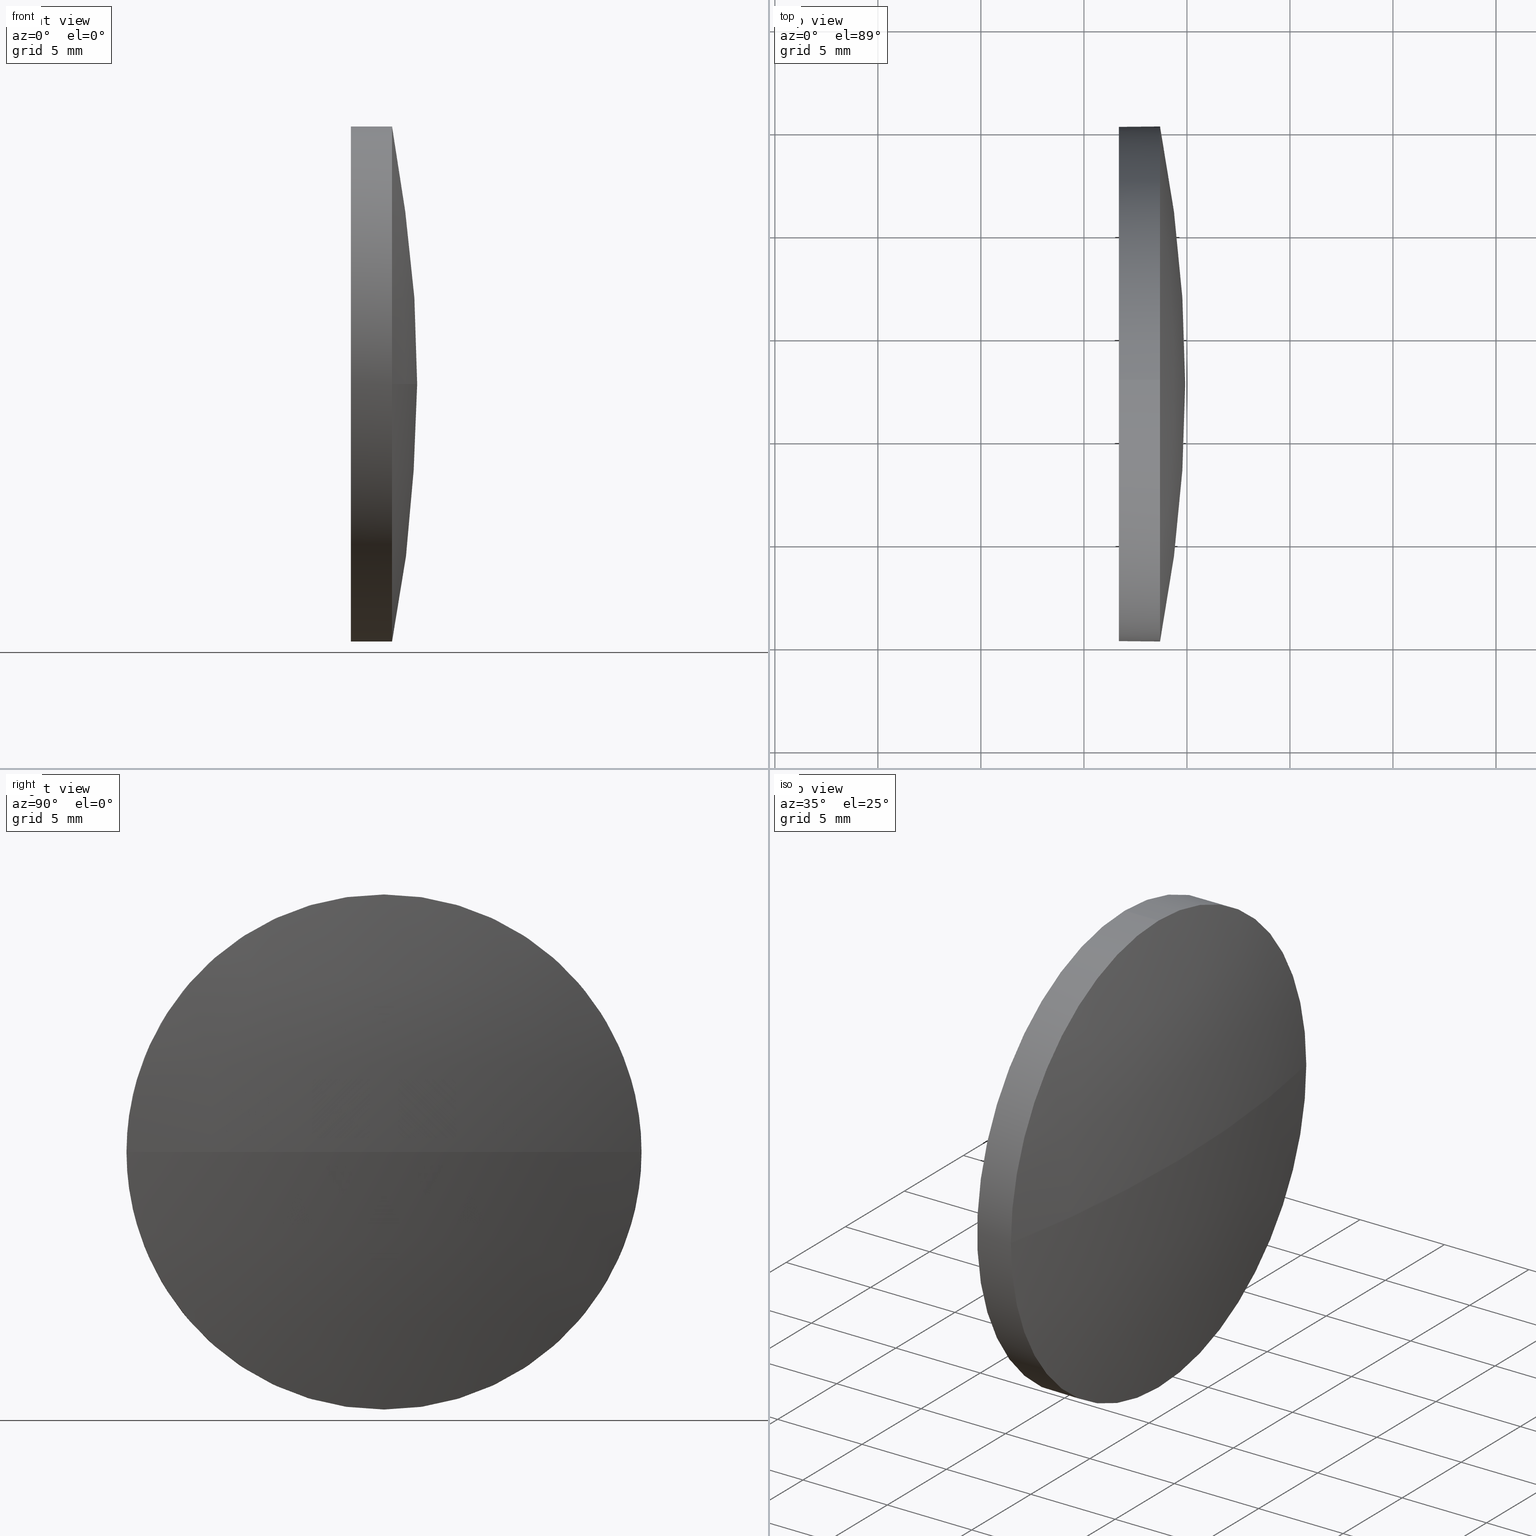
[diagram: canonical four-view strip — front | top / right | iso, engineering-drawing reading convention]
A machine part, canonical four-view strip (front | top / right | iso — engineering-drawing reading convention). The complete STEP part file that produces these views, byte-faithful:
ISO-10303-21;
HEADER;
FILE_DESCRIPTION (( 'STEP AP214' ),
    '1' );
FILE_NAME ('100131.STEP',
    '2019-05-15T01:28:14',
    ( '' ),
    ( '' ),
    'SwSTEP 2.0',
    'SolidWorks 2016',
    '' );
FILE_SCHEMA (( 'AUTOMOTIVE_DESIGN' ));
ENDSEC;

DATA;
#1 = EDGE_CURVE ( 'NONE', #79, #54, #132, .T. ) ;
#2 =( GEOMETRIC_REPRESENTATION_CONTEXT ( 3 ) GLOBAL_UNCERTAINTY_ASSIGNED_CONTEXT ( ( #115 ) ) GLOBAL_UNIT_ASSIGNED_CONTEXT ( ( #130, #71, #101 ) ) REPRESENTATION_CONTEXT ( 'NONE', 'WORKASPACE' ) );
#3 = ORIENTED_EDGE ( 'NONE', *, *, #67, .F. ) ;
#4 = COLOUR_RGB ( '',1.000000000000000000, 1.000000000000000000, 1.000000000000000000 ) ;
#5 = ADVANCED_FACE ( 'NONE', ( #157 ), #36, .T. ) ;
#6 = MANIFOLD_SOLID_BREP ( '��ת2', #49 ) ;
#7 = PRODUCT_DEFINITION_FORMATION_WITH_SPECIFIED_SOURCE ( '�κ�', '', #146, .NOT_KNOWN. ) ;
#8 = ORIENTED_EDGE ( 'NONE', *, *, #1, .F. ) ;
#9 = ORIENTED_EDGE ( 'NONE', *, *, #30, .T. ) ;
#10 = ORIENTED_EDGE ( 'NONE', *, *, #63, .F. ) ;
#11 = ADVANCED_FACE ( 'NONE', ( #145 ), #113, .T. ) ;
#12 = DIRECTION ( 'NONE',  ( 0.0000000000000000000, 0.0000000000000000000, -1.000000000000000000 ) ) ;
#13 = ORIENTED_EDGE ( 'NONE', *, *, #111, .F. ) ;
#14 = FILL_AREA_STYLE_COLOUR ( '', #176 ) ;
#15 = ORIENTED_EDGE ( 'NONE', *, *, #177, .F. ) ;
#16 = CARTESIAN_POINT ( 'NONE',  ( 663.6944572841594000, 125.1777850517631400, 0.0000000000000000000 ) ) ;
#17 = DIRECTION ( 'NONE',  ( -1.000000000000000000, -0.0000000000000000000, -0.0000000000000000000 ) ) ;
#18 = ORIENTED_EDGE ( 'NONE', *, *, #1, .T. ) ;
#19 = APPLICATION_CONTEXT ( 'automotive_design' ) ;
#20 = EDGE_LOOP ( 'NONE', ( #8, #9, #152, #94 ) ) ;
#21 = EDGE_CURVE ( 'NONE', #121, #83, #29, .T. ) ;
#22 = ADVANCED_FACE ( 'NONE', ( #66 ), #142, .T. ) ;
#23 = AXIS2_PLACEMENT_3D ( 'NONE', #43, #120, #156 ) ;
#24 = LINE ( 'NONE', #129, #73 ) ;
#25 = UNCERTAINTY_MEASURE_WITH_UNIT (LENGTH_MEASURE( 1.000000000000000100E-005 ), #86, 'distance_accuracy_value', 'NONE');
#26 = DIRECTION ( 'NONE',  ( -1.000000000000000000, -0.0000000000000000000, -0.0000000000000000000 ) ) ;
#27 = DIRECTION ( 'NONE',  ( -1.000000000000000000, -0.0000000000000000000, -0.0000000000000000000 ) ) ;
#28 = DIRECTION ( 'NONE',  ( 0.0000000000000000000, 0.0000000000000000000, 1.000000000000000000 ) ) ;
#29 = LINE ( 'NONE', #182, #147 ) ;
#30 = EDGE_CURVE ( 'NONE', #79, #40, #109, .T. ) ;
#31 = CARTESIAN_POINT ( 'NONE',  ( 661.6944572841594000, 112.6777850517631800, 12.50000000000001100 ) ) ;
#32 =( NAMED_UNIT ( * ) PLANE_ANGLE_UNIT ( ) SI_UNIT ( $, .RADIAN. ) );
#33 = PRODUCT_RELATED_PRODUCT_CATEGORY ( 'part', '', ( #146 ) ) ;
#34 = STYLED_ITEM ( 'NONE', ( #39 ), #175 ) ;
#35 = APPLICATION_PROTOCOL_DEFINITION ( 'draft international standard', 'automotive_design', 1998, #19 ) ;
#36 = CYLINDRICAL_SURFACE ( 'NONE', #77, 12.50000000000001100 ) ;
#37 = CIRCLE ( 'NONE', #160, 12.50000000000001100 ) ;
#38 = PRESENTATION_LAYER_ASSIGNMENT (  '', '', ( #82 ) ) ;
#39 = PRESENTATION_STYLE_ASSIGNMENT (( #57 ) ) ;
#40 = VERTEX_POINT ( 'NONE', #16 ) ;
#41 =( LENGTH_UNIT ( ) NAMED_UNIT ( * ) SI_UNIT ( .MILLI., .METRE. ) );
#42 = ADVANCED_FACE ( 'NONE', ( #174 ), #76, .F. ) ;
#43 = CARTESIAN_POINT ( 'NONE',  ( 0.0000000000000000000, 0.0000000000000000000, 0.0000000000000000000 ) ) ;
#44 = DIRECTION ( 'NONE',  ( -0.0000000000000000000, 0.0000000000000000000, -1.000000000000000000 ) ) ;
#45 = ORIENTED_EDGE ( 'NONE', *, *, #177, .T. ) ;
#46 = DIRECTION ( 'NONE',  ( 0.0000000000000000000, 0.0000000000000000000, 1.000000000000000000 ) ) ;
#47 = AXIS2_PLACEMENT_3D ( 'NONE', #155, #172, #168 ) ;
#48 = PRODUCT_DEFINITION ( 'δ֪', '', #7, #154 ) ;
#49 = CLOSED_SHELL ( 'NONE', ( #5, #22, #11, #78, #42 ) ) ;
#50 = EDGE_LOOP ( 'NONE', ( #53, #18, #10, #15 ) ) ;
#51 = ORIENTED_EDGE ( 'NONE', *, *, #63, .T. ) ;
#52 =( GEOMETRIC_REPRESENTATION_CONTEXT ( 3 ) GLOBAL_UNCERTAINTY_ASSIGNED_CONTEXT ( ( #25 ) ) GLOBAL_UNIT_ASSIGNED_CONTEXT ( ( #86, #166, #180 ) ) REPRESENTATION_CONTEXT ( 'NONE', 'WORKASPACE' ) );
#53 = ORIENTED_EDGE ( 'NONE', *, *, #30, .F. ) ;
#54 = VERTEX_POINT ( 'NONE', #165 ) ;
#55 = CARTESIAN_POINT ( 'NONE',  ( 659.3288413813984300, 112.6777850517631800, 0.0000000000000000000 ) ) ;
#56 = ORIENTED_EDGE ( 'NONE', *, *, #110, .T. ) ;
#57 = SURFACE_STYLE_USAGE ( .BOTH. , #74 ) ;
#58 = FILL_AREA_STYLE ('',( #14 ) ) ;
#59 = DIRECTION ( 'NONE',  ( 1.000000000000000000, 0.0000000000000000000, 0.0000000000000000000 ) ) ;
#60 = DIRECTION ( 'NONE',  ( 0.0000000000000000000, 0.0000000000000000000, 1.000000000000000000 ) ) ;
#61 = EDGE_CURVE ( 'NONE', #83, #149, #135, .T. ) ;
#62 = MECHANICAL_DESIGN_GEOMETRIC_PRESENTATION_REPRESENTATION (  '', ( #34 ), #2 ) ;
#63 = EDGE_CURVE ( 'NONE', #123, #54, #37, .T. ) ;
#64 = CIRCLE ( 'NONE', #106, 12.50000000000001100 ) ;
#65 = AXIS2_PLACEMENT_3D ( 'NONE', #131, #44, #70 ) ;
#66 = FACE_OUTER_BOUND ( 'NONE', #50, .T. ) ;
#67 = EDGE_CURVE ( 'NONE', #149, #83, #103, .T. ) ;
#68 = DIRECTION ( 'NONE',  ( 0.0000000000000000000, 1.224646799147353200E-016, -1.000000000000000000 ) ) ;
#69 = DIRECTION ( 'NONE',  ( 0.0000000000000000000, 0.0000000000000000000, 1.000000000000000000 ) ) ;
#70 = DIRECTION ( 'NONE',  ( 0.0000000000000000000, 1.000000000000000000, 0.0000000000000000000 ) ) ;
#71 =( NAMED_UNIT ( * ) PLANE_ANGLE_UNIT ( ) SI_UNIT ( $, .RADIAN. ) );
#72 = DIRECTION ( 'NONE',  ( -1.000000000000000000, -0.0000000000000000000, -0.0000000000000000000 ) ) ;
#73 = VECTOR ( 'NONE', #181, 1000.000000000000000 ) ;
#74 = SURFACE_SIDE_STYLE ('',( #184 ) ) ;
#75 = CARTESIAN_POINT ( 'NONE',  ( 663.6944572841594000, 112.6777850517631800, 0.0000000000000000000 ) ) ;
#76 = PLANE ( 'NONE',  #96 ) ;
#77 = AXIS2_PLACEMENT_3D ( 'NONE', #55, #164, #81 ) ;
#78 = ADVANCED_FACE ( 'NONE', ( #136 ), #169, .T. ) ;
#79 = VERTEX_POINT ( 'NONE', #133 ) ;
#80 = AXIS2_PLACEMENT_3D ( 'NONE', #102, #137, #153 ) ;
#81 = DIRECTION ( 'NONE',  ( 0.0000000000000000000, 0.0000000000000000000, 1.000000000000000000 ) ) ;
#82 = STYLED_ITEM ( 'NONE', ( #107 ), #6 ) ;
#83 = VERTEX_POINT ( 'NONE', #31 ) ;
#84 = DIRECTION ( 'NONE',  ( 0.0000000000000000000, 0.0000000000000000000, 1.000000000000000000 ) ) ;
#85 = CARTESIAN_POINT ( 'NONE',  ( 663.6944572841594000, 112.6777850517631800, 12.50000000000001100 ) ) ;
#86 =( LENGTH_UNIT ( ) NAMED_UNIT ( * ) SI_UNIT ( .MILLI., .METRE. ) );
#87 = CARTESIAN_POINT ( 'NONE',  ( 663.6944572841594000, 112.6777850517631800, 0.0000000000000000000 ) ) ;
#88 = CARTESIAN_POINT ( 'NONE',  ( 661.6944572841594000, 112.6777850517631800, 0.0000000000000000000 ) ) ;
#89 = EDGE_LOOP ( 'NONE', ( #13, #51, #56, #161, #3 ) ) ;
#90 = APPLICATION_PROTOCOL_DEFINITION ( 'draft international standard', 'automotive_design', 1998, #139 ) ;
#91 = CARTESIAN_POINT ( 'NONE',  ( 659.3288413813984300, 112.6777850517631800, 0.0000000000000000000 ) ) ;
#92 = SHAPE_DEFINITION_REPRESENTATION ( #159, #175 ) ;
#93 = ORIENTED_EDGE ( 'NONE', *, *, #111, .T. ) ;
#94 = ORIENTED_EDGE ( 'NONE', *, *, #110, .F. ) ;
#95 = AXIS2_PLACEMENT_3D ( 'NONE', #140, #118, #28 ) ;
#96 = AXIS2_PLACEMENT_3D ( 'NONE', #88, #59, #12 ) ;
#97 = CIRCLE ( 'NONE', #171, 12.50000000000001100 ) ;
#98 =( NAMED_UNIT ( * ) SI_UNIT ( $, .STERADIAN. ) SOLID_ANGLE_UNIT ( ) );
#99 = CARTESIAN_POINT ( 'NONE',  ( 661.6944572841594000, 112.6777850517631800, 0.0000000000000000000 ) ) ;
#100 = SURFACE_STYLE_USAGE ( .BOTH. , #117 ) ;
#101 =( NAMED_UNIT ( * ) SI_UNIT ( $, .STERADIAN. ) SOLID_ANGLE_UNIT ( ) );
#102 = CARTESIAN_POINT ( 'NONE',  ( 600.2675720382576400, 112.6777850517629700, 0.0000000000000000000 ) ) ;
#103 = CIRCLE ( 'NONE', #112, 12.50000000000001100 ) ;
#104 = CARTESIAN_POINT ( 'NONE',  ( 663.6944572841594000, 112.6777850517631800, 0.0000000000000000000 ) ) ;
#105 = DIRECTION ( 'NONE',  ( -1.000000000000000000, -0.0000000000000000000, -0.0000000000000000000 ) ) ;
#106 = AXIS2_PLACEMENT_3D ( 'NONE', #75, #134, #183 ) ;
#107 = PRESENTATION_STYLE_ASSIGNMENT (( #100 ) ) ;
#108 = MECHANICAL_DESIGN_GEOMETRIC_PRESENTATION_REPRESENTATION (  '', ( #82 ), #52 ) ;
#109 = CIRCLE ( 'NONE', #47, 64.64688524590178500 ) ;
#110 = EDGE_CURVE ( 'NONE', #54, #121, #97, .T. ) ;
#111 = EDGE_CURVE ( 'NONE', #123, #149, #24, .T. ) ;
#112 = AXIS2_PLACEMENT_3D ( 'NONE', #99, #27, #60 ) ;
#113 = SPHERICAL_SURFACE ( 'NONE', #65, 64.64688524590181400 ) ;
#114 =( GEOMETRIC_REPRESENTATION_CONTEXT ( 3 ) GLOBAL_UNCERTAINTY_ASSIGNED_CONTEXT ( ( #127 ) ) GLOBAL_UNIT_ASSIGNED_CONTEXT ( ( #41, #32, #98 ) ) REPRESENTATION_CONTEXT ( 'NONE', 'WORKASPACE' ) );
#115 = UNCERTAINTY_MEASURE_WITH_UNIT (LENGTH_MEASURE( 1.000000000000000100E-005 ), #130, 'distance_accuracy_value', 'NONE');
#116 = DIRECTION ( 'NONE',  ( -1.000000000000000000, -0.0000000000000000000, -0.0000000000000000000 ) ) ;
#117 = SURFACE_SIDE_STYLE ('',( #138 ) ) ;
#118 = DIRECTION ( 'NONE',  ( -1.000000000000000000, -0.0000000000000000000, -0.0000000000000000000 ) ) ;
#119 = EDGE_CURVE ( 'NONE', #121, #40, #178, .T. ) ;
#120 = DIRECTION ( 'NONE',  ( 0.0000000000000000000, 0.0000000000000000000, 1.000000000000000000 ) ) ;
#121 = VERTEX_POINT ( 'NONE', #85 ) ;
#122 = ORIENTED_EDGE ( 'NONE', *, *, #61, .T. ) ;
#123 = VERTEX_POINT ( 'NONE', #150 ) ;
#124 = AXIS2_PLACEMENT_3D ( 'NONE', #170, #105, #167 ) ;
#125 = ORIENTED_EDGE ( 'NONE', *, *, #67, .T. ) ;
#126 = AXIS2_PLACEMENT_3D ( 'NONE', #91, #17, #69 ) ;
#127 = UNCERTAINTY_MEASURE_WITH_UNIT (LENGTH_MEASURE( 1.000000000000000100E-005 ), #41, 'distance_accuracy_value', 'NONE');
#128 = ORIENTED_EDGE ( 'NONE', *, *, #61, .F. ) ;
#129 = CARTESIAN_POINT ( 'NONE',  ( 659.3288413813984300, 112.6777850517631800, -12.50000000000001100 ) ) ;
#130 =( LENGTH_UNIT ( ) NAMED_UNIT ( * ) SI_UNIT ( .MILLI., .METRE. ) );
#131 = CARTESIAN_POINT ( 'NONE',  ( 600.2675720382576400, 112.6777850517629700, 0.0000000000000000000 ) ) ;
#132 = CIRCLE ( 'NONE', #144, 64.64688524590182800 ) ;
#133 = CARTESIAN_POINT ( 'NONE',  ( 664.9144572841594300, 112.6777850517629700, 0.0000000000000000000 ) ) ;
#134 = DIRECTION ( 'NONE',  ( -1.000000000000000000, -0.0000000000000000000, -0.0000000000000000000 ) ) ;
#135 = CIRCLE ( 'NONE', #124, 12.50000000000001100 ) ;
#136 = FACE_OUTER_BOUND ( 'NONE', #89, .T. ) ;
#137 = DIRECTION ( 'NONE',  ( -0.0000000000000000000, 0.0000000000000000000, -1.000000000000000000 ) ) ;
#138 = SURFACE_STYLE_FILL_AREA ( #58 ) ;
#139 = APPLICATION_CONTEXT ( 'automotive_design' ) ;
#140 = CARTESIAN_POINT ( 'NONE',  ( 663.6944572841594000, 112.6777850517631800, 0.0000000000000000000 ) ) ;
#141 = DIRECTION ( 'NONE',  ( 0.0000000000000000000, 1.000000000000000000, 1.224646799147353000E-016 ) ) ;
#142 = SPHERICAL_SURFACE ( 'NONE', #80, 64.64688524590181400 ) ;
#143 = FILL_AREA_STYLE_COLOUR ( '', #4 ) ;
#144 = AXIS2_PLACEMENT_3D ( 'NONE', #148, #68, #141 ) ;
#145 = FACE_OUTER_BOUND ( 'NONE', #20, .T. ) ;
#146 = PRODUCT ( '100131', '100131', '', ( #185 ) ) ;
#147 = VECTOR ( 'NONE', #72, 1000.000000000000000 ) ;
#148 = CARTESIAN_POINT ( 'NONE',  ( 600.2675720382576400, 112.6777850517629700, 0.0000000000000000000 ) ) ;
#149 = VERTEX_POINT ( 'NONE', #179 ) ;
#150 = CARTESIAN_POINT ( 'NONE',  ( 663.6944572841594000, 112.6777850517631800, -12.50000000000001100 ) ) ;
#151 = FILL_AREA_STYLE ('',( #143 ) ) ;
#152 = ORIENTED_EDGE ( 'NONE', *, *, #119, .F. ) ;
#153 = DIRECTION ( 'NONE',  ( 0.0000000000000000000, 1.000000000000000000, 0.0000000000000000000 ) ) ;
#154 = PRODUCT_DEFINITION_CONTEXT ( 'detailed design', #19, 'design' ) ;
#155 = CARTESIAN_POINT ( 'NONE',  ( 600.2675720382576400, 112.6777850517629700, 0.0000000000000000000 ) ) ;
#156 = DIRECTION ( 'NONE',  ( 1.000000000000000000, 0.0000000000000000000, 0.0000000000000000000 ) ) ;
#157 = FACE_OUTER_BOUND ( 'NONE', #158, .T. ) ;
#158 = EDGE_LOOP ( 'NONE', ( #45, #93, #128, #163, #186 ) ) ;
#159 = PRODUCT_DEFINITION_SHAPE ( 'NONE', 'NONE',  #48 ) ;
#160 = AXIS2_PLACEMENT_3D ( 'NONE', #104, #26, #46 ) ;
#161 = ORIENTED_EDGE ( 'NONE', *, *, #21, .T. ) ;
#162 = EDGE_LOOP ( 'NONE', ( #122, #125 ) ) ;
#163 = ORIENTED_EDGE ( 'NONE', *, *, #21, .F. ) ;
#164 = DIRECTION ( 'NONE',  ( -1.000000000000000000, -0.0000000000000000000, -0.0000000000000000000 ) ) ;
#165 = CARTESIAN_POINT ( 'NONE',  ( 663.6944572841594000, 100.1777850517630000, -1.530808498934188200E-015 ) ) ;
#166 =( NAMED_UNIT ( * ) PLANE_ANGLE_UNIT ( ) SI_UNIT ( $, .RADIAN. ) );
#167 = DIRECTION ( 'NONE',  ( 0.0000000000000000000, 0.0000000000000000000, 1.000000000000000000 ) ) ;
#168 = DIRECTION ( 'NONE',  ( 1.000000000000000000, 0.0000000000000000000, 0.0000000000000000000 ) ) ;
#169 = CYLINDRICAL_SURFACE ( 'NONE', #126, 12.50000000000001100 ) ;
#170 = CARTESIAN_POINT ( 'NONE',  ( 661.6944572841594000, 112.6777850517631800, 0.0000000000000000000 ) ) ;
#171 = AXIS2_PLACEMENT_3D ( 'NONE', #87, #116, #84 ) ;
#172 = DIRECTION ( 'NONE',  ( -0.0000000000000000000, 0.0000000000000000000, 1.000000000000000000 ) ) ;
#173 = PRESENTATION_LAYER_ASSIGNMENT (  '', '', ( #34 ) ) ;
#174 = FACE_OUTER_BOUND ( 'NONE', #162, .T. ) ;
#175 = ADVANCED_BREP_SHAPE_REPRESENTATION ( '100131', ( #6, #23 ), #114 ) ;
#176 = COLOUR_RGB ( '',1.000000000000000000, 1.000000000000000000, 1.000000000000000000 ) ;
#177 = EDGE_CURVE ( 'NONE', #40, #123, #64, .T. ) ;
#178 = CIRCLE ( 'NONE', #95, 12.50000000000001100 ) ;
#179 = CARTESIAN_POINT ( 'NONE',  ( 661.6944572841594000, 112.6777850517631800, -12.50000000000001100 ) ) ;
#180 =( NAMED_UNIT ( * ) SI_UNIT ( $, .STERADIAN. ) SOLID_ANGLE_UNIT ( ) );
#181 = DIRECTION ( 'NONE',  ( -1.000000000000000000, -0.0000000000000000000, -0.0000000000000000000 ) ) ;
#182 = CARTESIAN_POINT ( 'NONE',  ( 659.3288413813984300, 112.6777850517631800, 12.50000000000001100 ) ) ;
#183 = DIRECTION ( 'NONE',  ( 0.0000000000000000000, 0.0000000000000000000, 1.000000000000000000 ) ) ;
#184 = SURFACE_STYLE_FILL_AREA ( #151 ) ;
#185 = PRODUCT_CONTEXT ( 'NONE', #139, 'mechanical' ) ;
#186 = ORIENTED_EDGE ( 'NONE', *, *, #119, .T. ) ;
ENDSEC;
END-ISO-10303-21;
